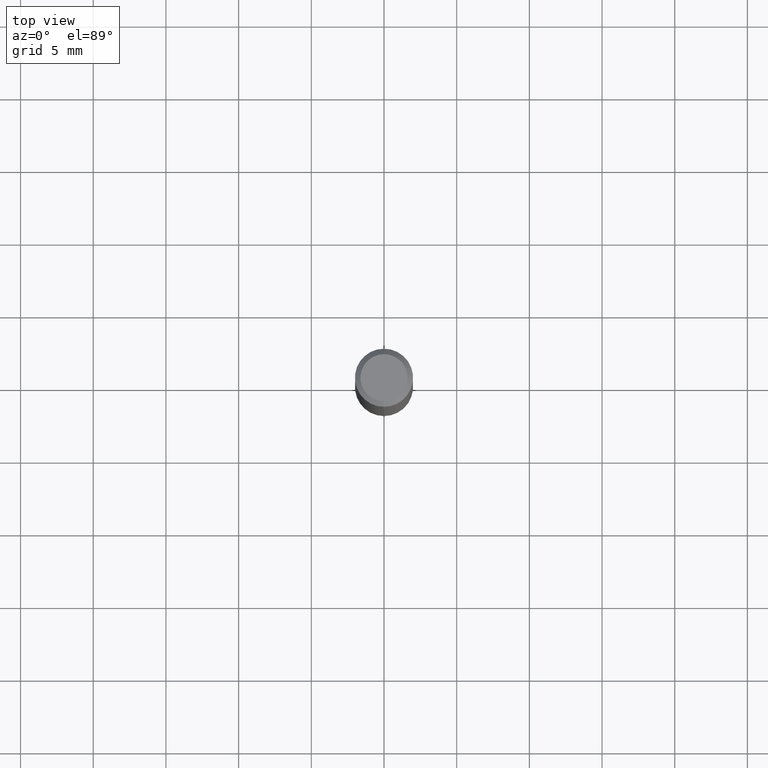
[diagram: clean part render]
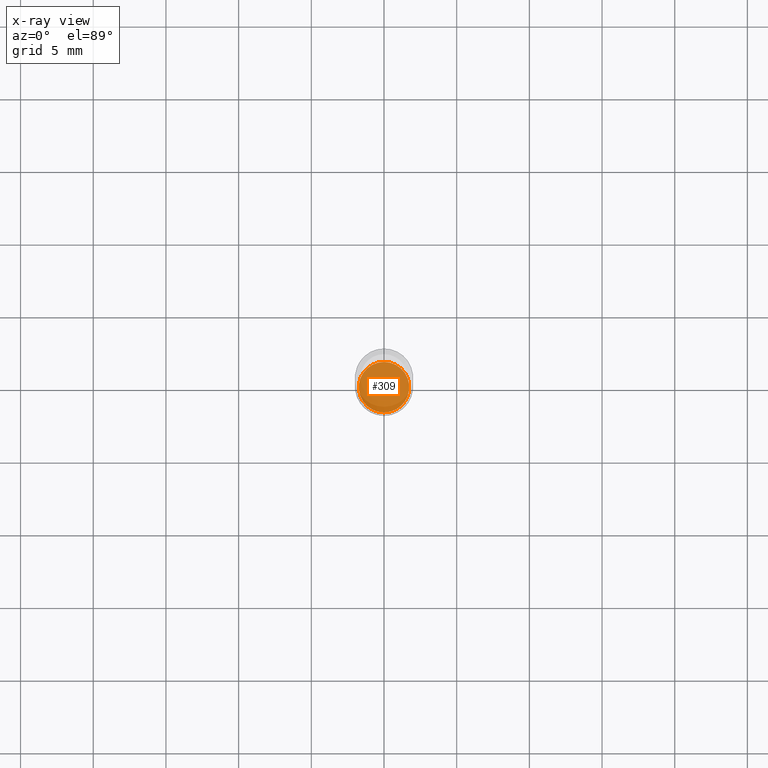
[diagram: x-ray — body ghosted, one internal face saturated and labeled with its STEP entity id]
A machine part, top view, then the same camera in x-ray: the body is ghosted and one INTERNAL B-rep face — a face not visible from any outside direction — is saturated and labeled: STEP entity #309.
In plain terms, the highlighted planar face has unit normal (-0, 0, 1).
Its self-contained STEP definition (entity closure, byte-faithful):
#13 = CARTESIAN_POINT ( 'NONE',  ( -4.776346471537044438E-16, -0.06840000000000528990, -1.496099999999999541 ) ) ;
#14 = EDGE_LOOP ( 'NONE', ( #258, #502 ) ) ;
#21 = CARTESIAN_POINT ( 'NONE',  ( 3.659741478239010346E-29, -5.222064914482659693E-15, -1.496099999999999985 ) ) ;
#64 = AXIS2_PLACEMENT_3D ( 'NONE', #291, #495, #95 ) ;
#95 = DIRECTION ( 'NONE',  ( -6.982962677686266711E-15, -1.000000000000000000, 3.993929815298627073E-15 ) ) ;
#127 = CIRCLE ( 'NONE', #64, 0.06840000000000005798 ) ;
#171 = VERTEX_POINT ( 'NONE', #481 ) ;
#175 = DIRECTION ( 'NONE',  ( -2.446187740284079292E-29, 3.490451784294271843E-15, 1.000000000000000000 ) ) ;
#222 = VERTEX_POINT ( 'NONE', #13 ) ;
#230 = AXIS2_PLACEMENT_3D ( 'NONE', #21, #175, #330 ) ;
#246 = DIRECTION ( 'NONE',  ( -2.446187740284079292E-29, 3.490451784294271449E-15, 1.000000000000000000 ) ) ;
#258 = ORIENTED_EDGE ( 'NONE', *, *, #501, .F. ) ;
#291 = CARTESIAN_POINT ( 'NONE',  ( 3.659741478239010346E-29, -5.222064914482659693E-15, -1.496099999999999985 ) ) ;
#309 = ADVANCED_FACE ( 'NONE', ( #426 ), #312, .F. ) ;
#312 = PLANE ( 'NONE',  #329 ) ;
#317 = DIRECTION ( 'NONE',  ( -6.982962677686265922E-15, -1.000000000000000000, 3.490451784294271449E-15 ) ) ;
#329 = AXIS2_PLACEMENT_3D ( 'NONE', #472, #246, #317 ) ;
#330 = DIRECTION ( 'NONE',  ( -6.982962677686266711E-15, -1.000000000000000000, 3.993929815298627073E-15 ) ) ;
#406 = CIRCLE ( 'NONE', #230, 0.06840000000000005798 ) ;
#426 = FACE_OUTER_BOUND ( 'NONE', #14, .T. ) ;
#448 = EDGE_CURVE ( 'NONE', #171, #222, #127, .T. ) ;
#472 = CARTESIAN_POINT ( 'NONE',  ( 3.659741478239010346E-29, -5.222064914482659693E-15, -1.496099999999999985 ) ) ;
#481 = CARTESIAN_POINT ( 'NONE',  ( 4.877875880993454787E-16, 0.06839999999999483993, -1.496100000000000207 ) ) ;
#495 = DIRECTION ( 'NONE',  ( -2.446187740284079292E-29, 3.490451784294271843E-15, 1.000000000000000000 ) ) ;
#501 = EDGE_CURVE ( 'NONE', #222, #171, #406, .T. ) ;
#502 = ORIENTED_EDGE ( 'NONE', *, *, #448, .F. ) ;